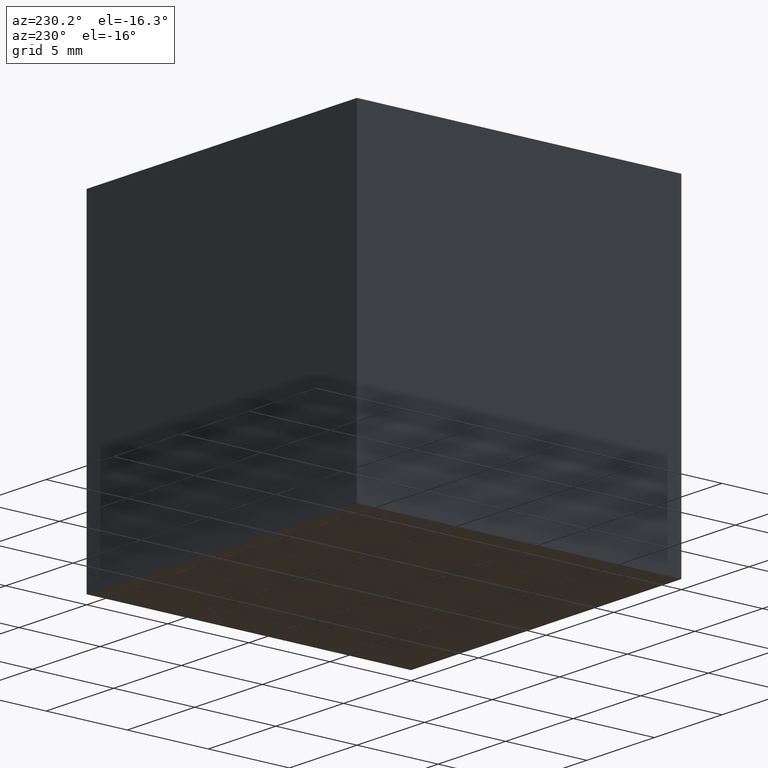
[diagram: clean part render]
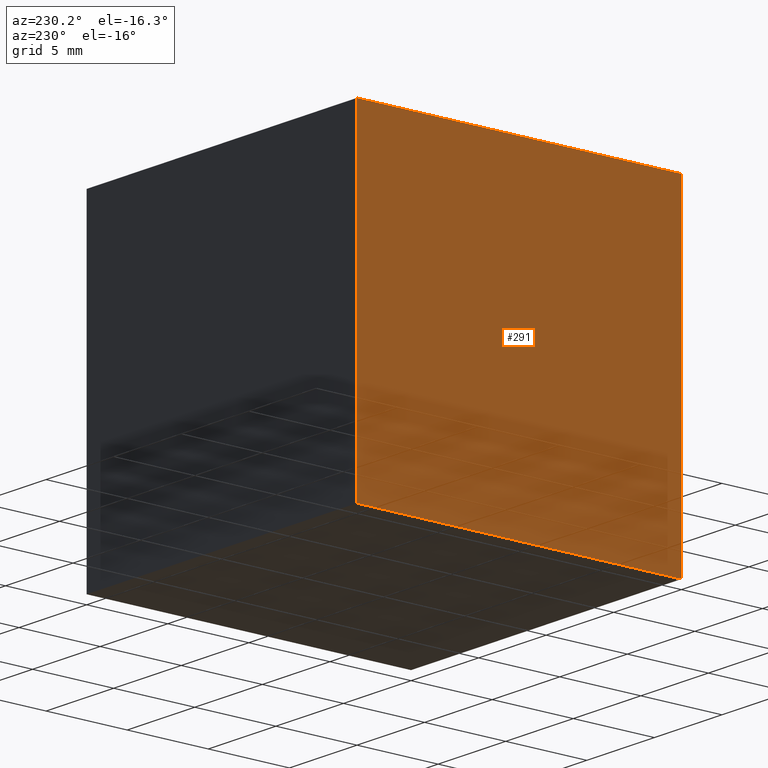
[diagram: same view with one face highlighted and labeled with its STEP entity id]
A machine part, auxiliary view. The second image highlights one B-rep face of the part: STEP entity #291.
In plain terms, the highlighted planar face has unit normal (-1, 0, 0).
Its self-contained STEP definition (entity closure, byte-faithful):
#12 = VERTEX_POINT ( 'NONE', #286 ) ;
#20 = VERTEX_POINT ( 'NONE', #268 ) ;
#31 = VECTOR ( 'NONE', #161, 1000.000000000000000 ) ;
#38 = CARTESIAN_POINT ( 'NONE',  ( -20.00000000000000000, -0.0000000000000000000, -19.99999999999999600 ) ) ;
#41 = VECTOR ( 'NONE', #66, 1000.000000000000000 ) ;
#43 = VECTOR ( 'NONE', #157, 1000.000000000000000 ) ;
#60 = EDGE_CURVE ( 'NONE', #20, #12, #133, .T. ) ;
#62 = VECTOR ( 'NONE', #260, 1000.000000000000000 ) ;
#66 = DIRECTION ( 'NONE',  ( 0.0000000000000000000, -1.000000000000000000, 0.0000000000000000000 ) ) ;
#68 = EDGE_CURVE ( 'NONE', #74, #126, #140, .T. ) ;
#74 = VERTEX_POINT ( 'NONE', #171 ) ;
#91 = ORIENTED_EDGE ( 'NONE', *, *, #192, .T. ) ;
#104 = ORIENTED_EDGE ( 'NONE', *, *, #60, .T. ) ;
#112 = EDGE_LOOP ( 'NONE', ( #169, #118, #91, #104 ) ) ;
#118 = ORIENTED_EDGE ( 'NONE', *, *, #68, .F. ) ;
#120 = CARTESIAN_POINT ( 'NONE',  ( -20.00000000000000000, 20.00000000000000000, -19.99999999999999600 ) ) ;
#126 = VERTEX_POINT ( 'NONE', #178 ) ;
#132 = DIRECTION ( 'NONE',  ( 0.0000000000000000000, 0.0000000000000000000, 1.000000000000000000 ) ) ;
#133 = LINE ( 'NONE', #120, #62 ) ;
#140 = LINE ( 'NONE', #174, #41 ) ;
#157 = DIRECTION ( 'NONE',  ( -0.0000000000000000000, -0.0000000000000000000, -1.000000000000000000 ) ) ;
#158 = FACE_OUTER_BOUND ( 'NONE', #112, .T. ) ;
#161 = DIRECTION ( 'NONE',  ( -0.0000000000000000000, -0.0000000000000000000, -1.000000000000000000 ) ) ;
#169 = ORIENTED_EDGE ( 'NONE', *, *, #257, .F. ) ;
#171 = CARTESIAN_POINT ( 'NONE',  ( -20.00000000000000000, 20.00000000000000000, 0.0000000000000000000 ) ) ;
#174 = CARTESIAN_POINT ( 'NONE',  ( -20.00000000000000000, 20.00000000000000000, 0.0000000000000000000 ) ) ;
#178 = CARTESIAN_POINT ( 'NONE',  ( -20.00000000000000000, 0.0000000000000000000, 0.0000000000000000000 ) ) ;
#184 = CARTESIAN_POINT ( 'NONE',  ( -20.00000000000000000, 20.00000000000000000, -19.99999999999999600 ) ) ;
#189 = AXIS2_PLACEMENT_3D ( 'NONE', #253, #274, #132 ) ;
#192 = EDGE_CURVE ( 'NONE', #74, #20, #262, .T. ) ;
#209 = PLANE ( 'NONE',  #189 ) ;
#253 = CARTESIAN_POINT ( 'NONE',  ( -20.00000000000000000, 20.00000000000000000, -19.99999999999999600 ) ) ;
#257 = EDGE_CURVE ( 'NONE', #126, #12, #278, .T. ) ;
#260 = DIRECTION ( 'NONE',  ( 0.0000000000000000000, -1.000000000000000000, 0.0000000000000000000 ) ) ;
#262 = LINE ( 'NONE', #184, #43 ) ;
#268 = CARTESIAN_POINT ( 'NONE',  ( -20.00000000000000000, 20.00000000000000000, -19.99999999999999600 ) ) ;
#274 = DIRECTION ( 'NONE',  ( -1.000000000000000000, 0.0000000000000000000, 0.0000000000000000000 ) ) ;
#278 = LINE ( 'NONE', #38, #31 ) ;
#286 = CARTESIAN_POINT ( 'NONE',  ( -20.00000000000000000, -0.0000000000000000000, -19.99999999999999600 ) ) ;
#291 = ADVANCED_FACE ( 'NONE', ( #158 ), #209, .T. ) ;